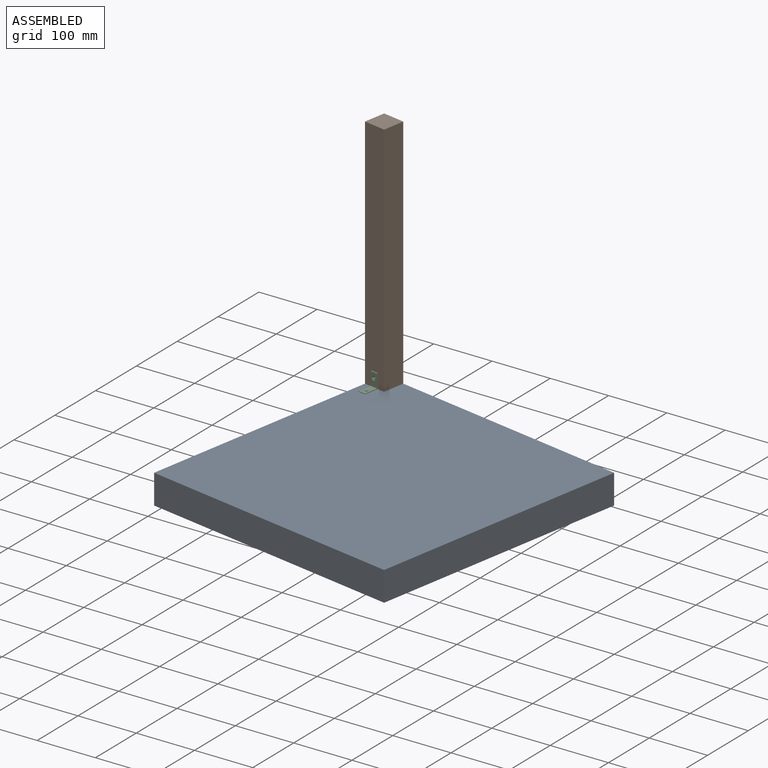
[diagram: assembled view]
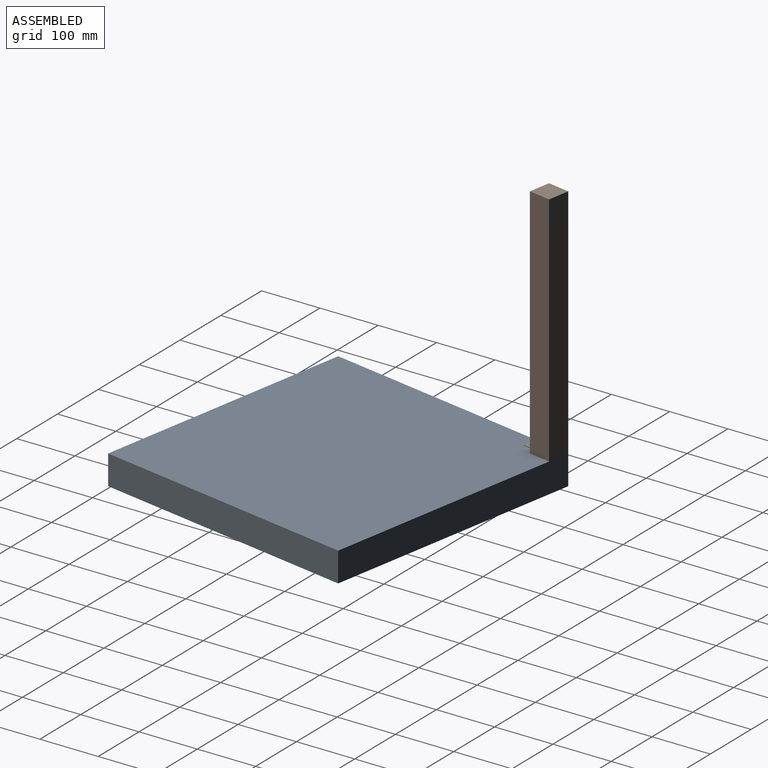
[diagram: assembled view, second angle]
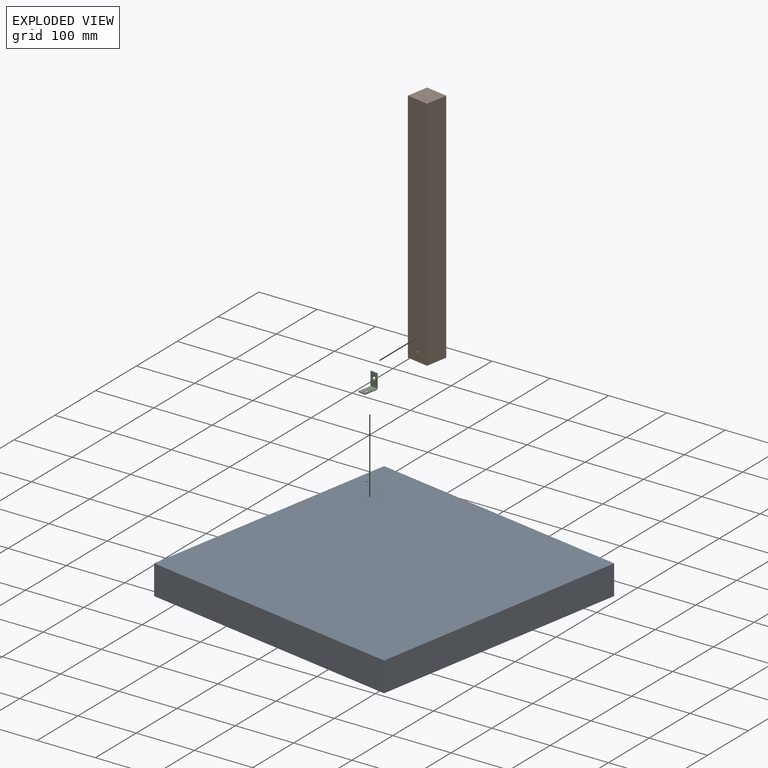
[diagram: exploded view]
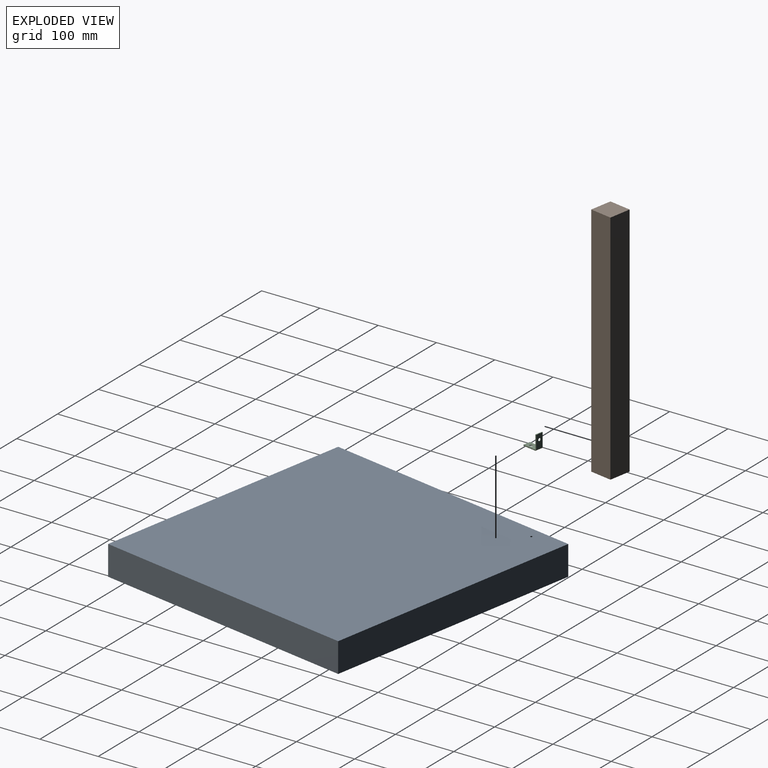
[diagram: exploded view, second angle]
ASSEMBLY  parts=3 mates=2
PART A: 8 faces, bbox 457.2x457.2x50.8 mm
  f0: plane 457.2x50.8mm, normal (0,1,0), area 23225.8mm2, adj f1,f3,f4,f5
  f1: plane 457.2x50.8mm, normal (-1,0,0), area 23225.8mm2, adj f0,f2,f4,f5
  f2: plane 457.2x50.8mm, normal (0,-1,0), area 23225.8mm2, adj f1,f3,f4,f5
  f3: plane 457.2x50.8mm, normal (1,0,0), area 23225.8mm2, adj f0,f2,f4,f5
  f4: plane 457.2x457.2mm, normal (0,0,1), area 209022.2mm2, adj f0,f1,f2,f3,f6
  f5: plane 457.2x457.2mm, normal (0,0,-1), area 209031.8mm2, adj f0,f1,f2,f3
  f6: cylinder r=1.75mm len=20.32mm, axis (0,0,1), area 223.8mm2, adj f4,f7
  f7: plane 3.51x3.51mm, normal (0,0,1), area 9.6mm2, adj f6
PART B: 8 faces, bbox 38.1x38.1x406.4 mm
  f0: plane 406.4x38.1mm, normal (0,-1,0), area 15474.2mm2, adj f1,f3,f4,f5,f6
  f1: plane 406.4x38.1mm, normal (1,0,0), area 15483.8mm2, adj f0,f2,f4,f5
  f2: plane 406.4x38.1mm, normal (0,1,0), area 15483.8mm2, adj f1,f3,f4,f5
  f3: plane 406.4x38.1mm, normal (-1,0,0), area 15483.8mm2, adj f0,f2,f4,f5
  f4: plane 38.1x38.1mm, normal (0,0,1), area 1451.6mm2, adj f0,f1,f2,f3
  f5: plane 38.1x38.1mm, normal (0,0,-1), area 1451.6mm2, adj f0,f1,f2,f3
  f6: cylinder r=1.75mm len=19.05mm, axis (0,-1,0), area 209.8mm2, adj f0,f7
  f7: plane 3.51x3.51mm, normal (0,-1,0), area 9.6mm2, adj f6
PART C: 14 faces, bbox 25.4x12.7x25.4 mm
  f0: cone r=3.54mm half-angle=49deg, axis (1,0,0), area 29.3mm2, adj f1,f10
  f1: cylinder r=2.35mm len=4.7mm, axis (1,0,0), area 10.9mm2, adj f0,f8
  f2: cone r=3.54mm half-angle=49deg, axis (0,0,1), area 29.3mm2, adj f3,f4
  f3: cylinder r=2.35mm len=4.7mm, axis (0,0,1), area 10.9mm2, adj f2,f6
  f4: plane 22.73x12.7mm, normal (0,0,1), area 249.3mm2, adj f2,f5,f11,f12,f13
  f5: plane 12.7x1.78mm, normal (1,0,0), area 22.6mm2, adj f4,f6,f12,f13
  f6: plane 22.73x12.7mm, normal (0,0,-1), area 271.4mm2, adj f3,f5,f7,f12,f13
  f7: cylinder r=2.67mm len=12.7mm, axis (0,-1,0), area 53.2mm2, adj f6,f8,f12,f13
  f8: plane 22.73x12.7mm, normal (-1,0,0), area 271.4mm2, adj f1,f7,f9,f12,f13
  f9: plane 12.7x1.78mm, normal (0,0,1), area 22.6mm2, adj f8,f10,f12,f13
  f10: plane 22.73x12.7mm, normal (1,0,0), area 249.3mm2, adj f0,f9,f11,f12,f13
  f11: cylinder r=0.89mm len=12.7mm, axis (0,-1,0), area 17.7mm2, adj f4,f10,f12,f13
  f12: plane 25.4x25.4mm, normal (0,1,0), area 85.8mm2, adj f4,f5,f6,f7,f8,f9,f10,f11
  f13: plane 25.4x25.4mm, normal (0,-1,0), area 85.8mm2, adj f4,f5,f6,f7,f8,f9,f10,f11
PLACE A rot(axis=(0,0,-1),10deg) t=(-59.72,-50.16,-19.51)mm
PLACE B rot(axis=(0.09,1,0),180deg) t=(-229.69,192.59,437.69)mm
PLACE C rot(axis=(0,0,-1),100deg) t=(-233,173.83,30.55)mm
MATE fastened A.f6 <-> C.f2  axis (0,0,1) through (-235.76,158.2,31.29)mm
MATE fastened A.f1 <-> B.f1  axis (-0.98,0.17,0) through (-245.15,214.66,31.29)mm
